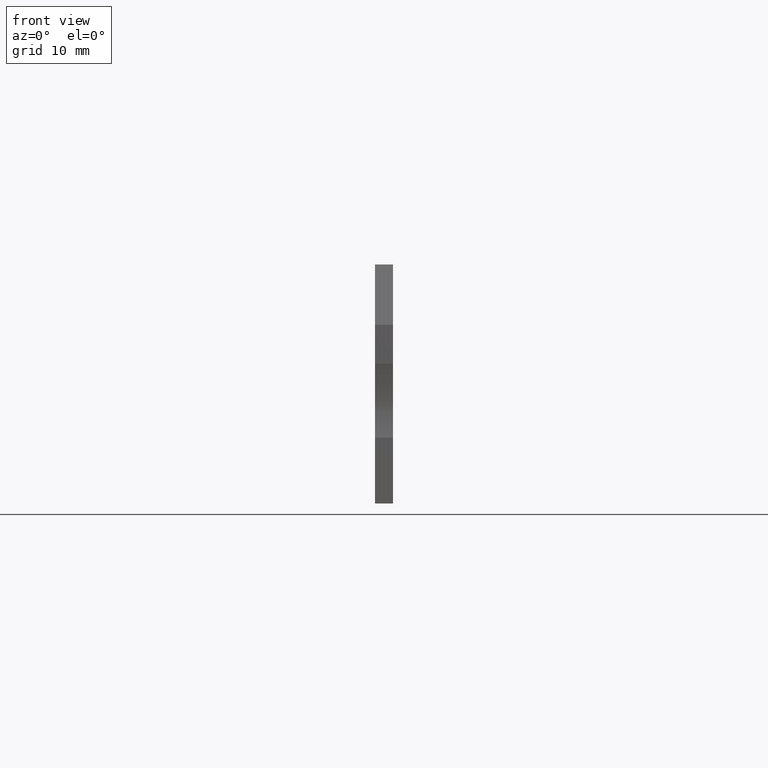
[diagram: clean part render]
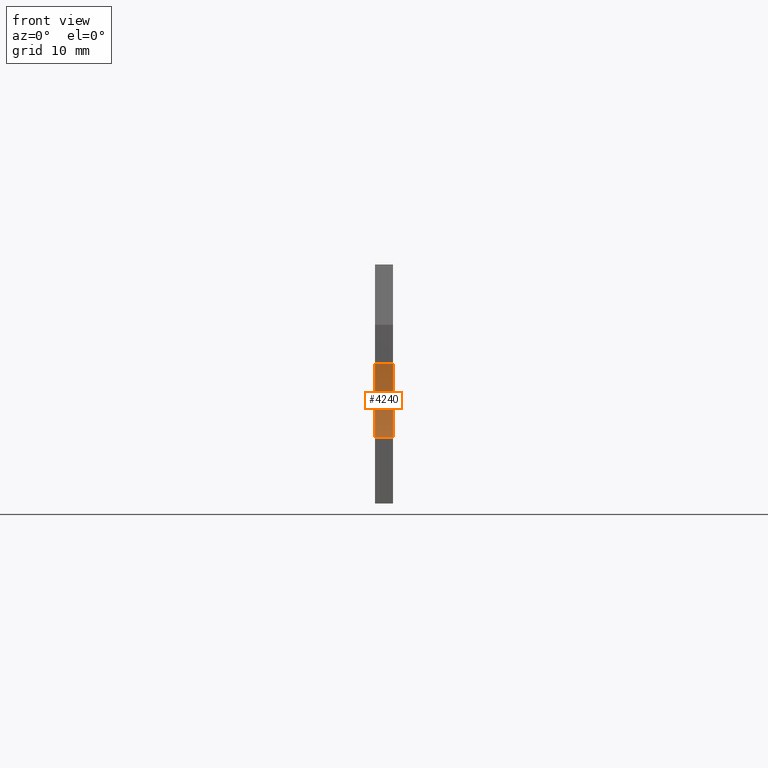
[diagram: same view with one face highlighted and labeled with its STEP entity id]
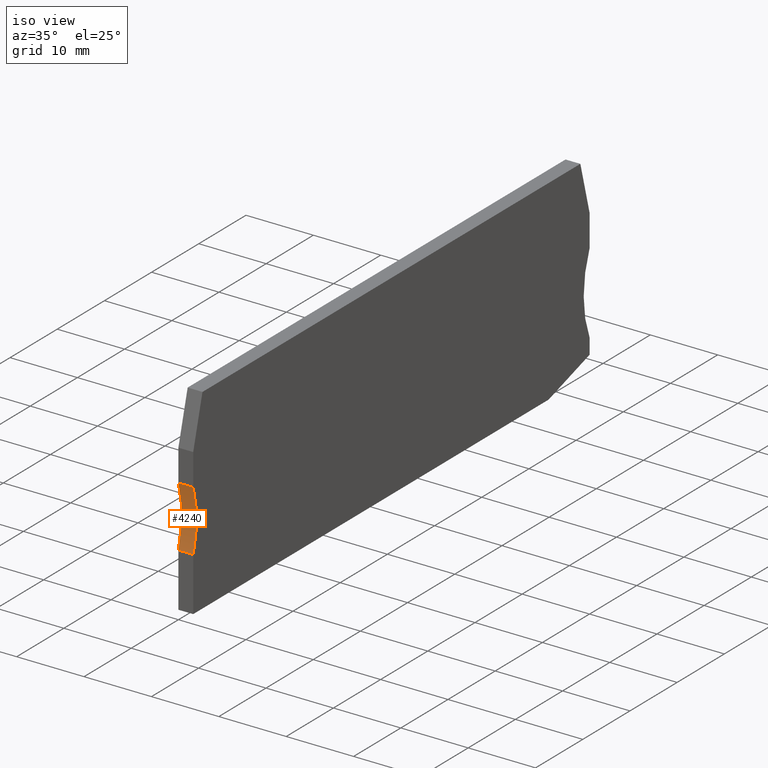
[diagram: same view with one face highlighted and labeled with its STEP entity id]
A machine part, front view. The second image highlights one B-rep face of the part: STEP entity #4240.
A second angle (iso view) of the same face is appended — the face is thin or edge-on in the first view.
In plain terms, the highlighted cylindrical surface (partial cylindrical patch) has radius 15 mm, axis along (1, -0, 0).
Its self-contained STEP definition (entity closure, byte-faithful):
#120=CARTESIAN_POINT('',(-34.1678327783247,-21.2000000000028,53.17));
#130=VERTEX_POINT('',#120);
#280=CARTESIAN_POINT('',(-34.1678327783247,-21.2000000000028,55.37));
#290=VERTEX_POINT('',#280);
#320=CARTESIAN_POINT('',(-34.1678327783247,-21.2000000000028,53.17));
#330=DIRECTION('',(0.,0.,1.));
#340=VECTOR('',#330,1.);
#350=LINE('',#320,#340);
#360=EDGE_CURVE('',#130,#290,#350,.T.);
#1750=CARTESIAN_POINT('',(-34.1678327783247,-30.2000000000027,55.37));
#1760=VERTEX_POINT('',#1750);
#1790=CARTESIAN_POINT('',(-48.4769207995789,-25.7000000000027,55.37));
#1800=DIRECTION('',(0.,0.,1.));
#1810=DIRECTION('',(1.,0.,0.));
#1820=AXIS2_PLACEMENT_3D('',#1790,#1800,#1810);
#1830=CIRCLE('',#1820,15.);
#1840=EDGE_CURVE('',#1760,#290,#1830,.T.);
#2730=CARTESIAN_POINT('',(-48.4769207995789,-25.7000000000027,53.17));
#2740=DIRECTION('',(0.,0.,1.));
#2750=DIRECTION('',(1.,0.,0.));
#2760=AXIS2_PLACEMENT_3D('',#2730,#2740,#2750);
#2770=CIRCLE('',#2760,15.);
#2780=CARTESIAN_POINT('',(-34.1678327783247,-30.2000000000027,53.17));
#2790=VERTEX_POINT('',#2780);
#2800=EDGE_CURVE('',#2790,#130,#2770,.T.);
#3960=CARTESIAN_POINT('',(-34.1678327783247,-30.2000000000027,53.17));
#3970=DIRECTION('',(0.,0.,1.));
#3980=VECTOR('',#3970,1.);
#3990=LINE('',#3960,#3980);
#4000=EDGE_CURVE('',#2790,#1760,#3990,.T.);
#4130=CARTESIAN_POINT('',(-48.4769207995789,-25.7000000000027,53.17));
#4140=DIRECTION('',(0.,0.,1.));
#4150=DIRECTION('',(1.,0.,0.));
#4160=AXIS2_PLACEMENT_3D('',#4130,#4140,#4150);
#4170=CYLINDRICAL_SURFACE('',#4160,15.);
#4180=ORIENTED_EDGE('',*,*,#2800,.F.);
#4190=ORIENTED_EDGE('',*,*,#360,.F.);
#4200=ORIENTED_EDGE('',*,*,#1840,.T.);
#4210=ORIENTED_EDGE('',*,*,#4000,.T.);
#4220=EDGE_LOOP('',(#4210,#4200,#4190,#4180));
#4230=FACE_OUTER_BOUND('',#4220,.T.);
#4240=ADVANCED_FACE('',(#4230),#4170,.F.);